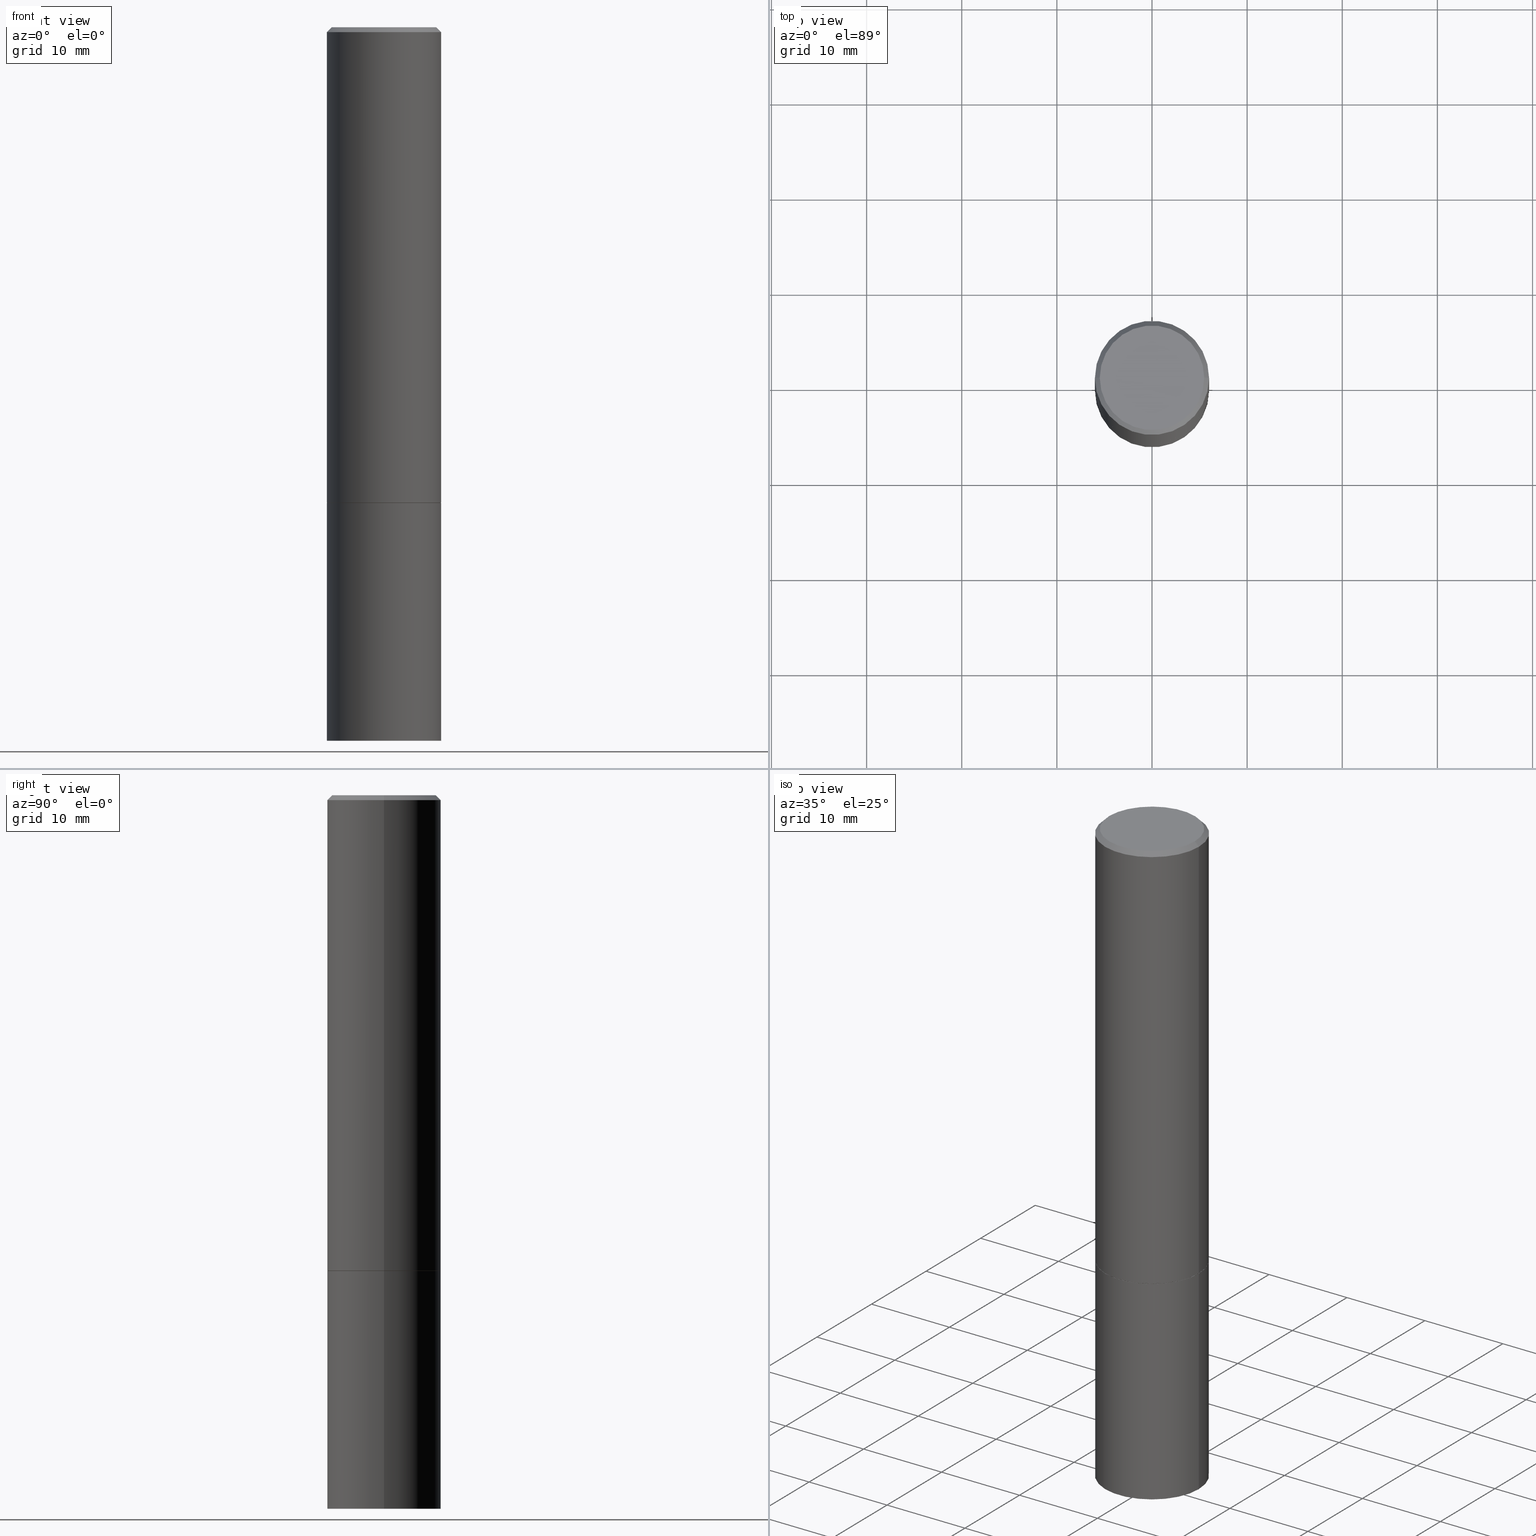
[diagram: canonical four-view strip — front | top / right | iso, engineering-drawing reading convention]
A machine part, canonical four-view strip (front | top / right | iso — engineering-drawing reading convention). The complete STEP part file that produces these views, byte-faithful:
ISO-10303-21;
HEADER;
FILE_DESCRIPTION (( 'STEP AP203' ),
    '1' );
FILE_NAME ('42623.STEP',
    '2024-02-28T03:40:38',
    ( '' ),
    ( '' ),
    'SwSTEP 2.0',
    'SolidWorks 2023',
    '' );
FILE_SCHEMA (( 'CONFIG_CONTROL_DESIGN' ));
ENDSEC;

DATA;
#1 = DIRECTION ( 'NONE',  ( 1.000000000000000000, -6.982962677686264344E-15, 0.000000000000000000 ) ) ;
#2 = PRODUCT_DEFINITION ( 'UNKNOWN', '', #31, #4 ) ;
#3 = ORIENTED_EDGE ( 'NONE', *, *, #92, .F. ) ;
#4 = DESIGN_CONTEXT ( 'detailed design', #308, 'design' ) ;
#5 = ORIENTED_EDGE ( 'NONE', *, *, #351, .T. ) ;
#6 = EDGE_LOOP ( 'NONE', ( #309, #294, #67, #203 ) ) ;
#7 = AXIS2_PLACEMENT_3D ( 'NONE', #360, #312, #159 ) ;
#8 = EDGE_LOOP ( 'NONE', ( #173, #139, #252, #177 ) ) ;
#9 = EDGE_CURVE ( 'NONE', #181, #117, #356, .T. ) ;
#10 = ORIENTED_EDGE ( 'NONE', *, *, #57, .F. ) ;
#11 = CARTESIAN_POINT ( 'NONE',  ( 0.000000000000000000, 0.000000000000000000, 0.000000000000000000 ) ) ;
#12 = ORIENTED_EDGE ( 'NONE', *, *, #223, .F. ) ;
#13 = DIRECTION ( 'NONE',  ( -2.445468806185136877E-29, 3.491481338843145188E-15, 1.000000000000000000 ) ) ;
#14 = AXIS2_PLACEMENT_3D ( 'NONE', #11, #170, #345 ) ;
#15 = PERSON_AND_ORGANIZATION_ROLE ( 'design_owner' ) ;
#16 = CARTESIAN_POINT ( 'NONE',  ( -0.2351999999999999924, -5.196486046656753130E-15, -1.968500000000000139 ) ) ;
#17 = PERSON_AND_ORGANIZATION ( #158, #237 ) ;
#18 = DIRECTION ( 'NONE',  ( -2.445468806185136877E-29, 3.491481338843145188E-15, 1.000000000000000000 ) ) ;
#19 = DIRECTION ( 'NONE',  ( -1.000000000000000000, 6.982962677686265922E-15, -4.876176775795935793E-29 ) ) ;
#20 = CARTESIAN_POINT ( 'NONE',  ( 4.813905344975441835E-29, -6.872981015512731707E-15, -1.968500000000000139 ) ) ;
#21 = AXIS2_PLACEMENT_3D ( 'NONE', #256, #84, #205 ) ;
#22 = EDGE_CURVE ( 'NONE', #117, #50, #228, .T. ) ;
#23 = DIRECTION ( 'NONE',  ( -2.445468806185136597E-29, 3.491481338843145583E-15, 1.000000000000000000 ) ) ;
#24 = LINE ( 'NONE', #358, #304 ) ;
#25 = EDGE_CURVE ( 'NONE', #188, #350, #129, .T. ) ;
#26 = CYLINDRICAL_SURFACE ( 'NONE', #34, 0.2361999999999998545 ) ;
#27 = CARTESIAN_POINT ( 'NONE',  ( 0.000000000000000000, 0.000000000000000000, 0.000000000000000000 ) ) ;
#28 = ORIENTED_EDGE ( 'NONE', *, *, #172, .T. ) ;
#29 = DIRECTION ( 'NONE',  ( -2.445468806185136597E-29, 3.491481338843145583E-15, 1.000000000000000000 ) ) ;
#30 = ADVANCED_FACE ( 'NONE', ( #364 ), #267, .F. ) ;
#31 = PRODUCT_DEFINITION_FORMATION_WITH_SPECIFIED_SOURCE ( 'ANY', '', #342, .NOT_KNOWN. ) ;
#32 = APPROVAL_DATE_TIME ( #287, #265 ) ;
#33 = PERSON_AND_ORGANIZATION_ROLE ( 'classification_officer' ) ;
#34 = AXIS2_PLACEMENT_3D ( 'NONE', #201, #138, #251 ) ;
#35 = ORIENTED_EDGE ( 'NONE', *, *, #286, .F. ) ;
#36 = EDGE_LOOP ( 'NONE', ( #151, #291 ) ) ;
#37 =( NAMED_UNIT ( * ) SI_UNIT ( $, .STERADIAN. ) SOLID_ANGLE_UNIT ( ) );
#38 = ORIENTED_EDGE ( 'NONE', *, *, #240, .F. ) ;
#39 = DIRECTION ( 'NONE',  ( 1.000000000000000000, -6.982962677686265133E-15, 0.000000000000000000 ) ) ;
#40 = DIRECTION ( 'NONE',  ( -2.438088387897960049E-29, 3.491481338843145188E-15, 1.000000000000000000 ) ) ;
#41 = PERSON_AND_ORGANIZATION ( #158, #237 ) ;
#42 = DIRECTION ( 'NONE',  ( 1.000000000000000000, -6.982962677686265133E-15, 0.000000000000000000 ) ) ;
#43 = MANIFOLD_SOLID_BREP ( 'Body-Move/Copy2[1]', #341 ) ;
#44 = DIRECTION ( 'NONE',  ( 0.7071067811864267805, -2.468850131080992517E-15, 0.7071067811866682540 ) ) ;
#45 = CARTESIAN_POINT ( 'NONE',  ( 0.000000000000000000, 0.000000000000000000, 0.000000000000000000 ) ) ;
#46 = DIRECTION ( 'NONE',  ( 1.000000000000000000, -6.982962677686265133E-15, 0.000000000000000000 ) ) ;
#47 = AXIS2_PLACEMENT_3D ( 'NONE', #135, #132, #19 ) ;
#48 = CC_DESIGN_SECURITY_CLASSIFICATION ( #306, ( #31 ) ) ;
#49 = PERSON_AND_ORGANIZATION ( #158, #237 ) ;
#50 = VERTEX_POINT ( 'NONE', #99 ) ;
#51 = DIRECTION ( 'NONE',  ( -2.445468806185136597E-29, 3.491481338843145583E-15, 1.000000000000000000 ) ) ;
#52 = EDGE_LOOP ( 'NONE', ( #266, #58, #348, #144 ) ) ;
#53 = CONICAL_SURFACE ( 'NONE', #292, 0.2361999999999997157, 0.7853981633974473908 ) ;
#54 = CYLINDRICAL_SURFACE ( 'NONE', #98, 0.2361999999999999933 ) ;
#55 = DIRECTION ( 'NONE',  ( 2.445468806185136597E-29, -3.491481338843145583E-15, -1.000000000000000000 ) ) ;
#56 = CARTESIAN_POINT ( 'NONE',  ( -0.2361999999999997157, 1.579546157692631255E-15, -0.02000000000000005593 ) ) ;
#57 = EDGE_CURVE ( 'NONE', #88, #50, #361, .T. ) ;
#58 = ORIENTED_EDGE ( 'NONE', *, *, #147, .T. ) ;
#59 = CIRCLE ( 'NONE', #164, 0.2361999999999997157 ) ;
#60 = AXIS2_PLACEMENT_3D ( 'NONE', #296, #69, #46 ) ;
#61 = CYLINDRICAL_SURFACE ( 'NONE', #14, 0.2361999999999998545 ) ;
#62 = AXIS2_PLACEMENT_3D ( 'NONE', #238, #212, #100 ) ;
#63 = ORIENTED_EDGE ( 'NONE', *, *, #351, .F. ) ;
#64 = CC_DESIGN_PERSON_AND_ORGANIZATION_ASSIGNMENT ( #41, #15, ( #342 ) ) ;
#65 = ORIENTED_EDGE ( 'NONE', *, *, #298, .T. ) ;
#66 = VECTOR ( 'NONE', #339, 39.37007874015748143 ) ;
#67 = ORIENTED_EDGE ( 'NONE', *, *, #126, .T. ) ;
#68 = CARTESIAN_POINT ( 'NONE',  ( 7.220980290903470182E-29, -1.030964609733603853E-14, -2.952799999999999869 ) ) ;
#69 = DIRECTION ( 'NONE',  ( -2.445468806185136597E-29, 3.491481338843145583E-15, 1.000000000000000000 ) ) ;
#70 = APPROVAL_STATUS ( 'not_yet_approved' ) ;
#71 = CARTESIAN_POINT ( 'NONE',  ( 4.813905344975440714E-29, -6.872981015512730918E-15, -1.968499999999999694 ) ) ;
#72 = COORDINATED_UNIVERSAL_TIME_OFFSET ( 5, 0, .BEHIND. ) ;
#73 = DIRECTION ( 'NONE',  ( -2.445468806185136877E-29, 3.491481338843145188E-15, 1.000000000000000000 ) ) ;
#74 = FACE_OUTER_BOUND ( 'NONE', #6, .T. ) ;
#75 = DIRECTION ( 'NONE',  ( -2.445468806185136597E-29, 3.491481338843145583E-15, 1.000000000000000000 ) ) ;
#76 = LINE ( 'NONE', #199, #134 ) ;
#77 = CARTESIAN_POINT ( 'NONE',  ( 0.2361999999999999933, -8.518865318643383648E-15, -1.967499999999999805 ) ) ;
#78 = CLOSED_SHELL ( 'NONE', ( #118, #329, #131, #219, #262, #178, #30, #234 ) ) ;
#79 = APPROVAL_PERSON_ORGANIZATION ( #230, #265, #231 ) ;
#80 = MECHANICAL_CONTEXT ( 'NONE', #216, 'mechanical' ) ;
#81 = LINE ( 'NONE', #163, #253 ) ;
#82 = FACE_OUTER_BOUND ( 'NONE', #122, .T. ) ;
#83 = CARTESIAN_POINT ( 'NONE',  ( 0.2361999999999997157, -1.690279253850496996E-15, -0.02000000000000005593 ) ) ;
#84 = DIRECTION ( 'NONE',  ( -2.445468806185136597E-29, 3.491481338843145583E-15, 1.000000000000000000 ) ) ;
#85 = AXIS2_PLACEMENT_3D ( 'NONE', #332, #75, #270 ) ;
#86 =( GEOMETRIC_REPRESENTATION_CONTEXT ( 3 ) GLOBAL_UNCERTAINTY_ASSIGNED_CONTEXT ( ( #200 ) ) GLOBAL_UNIT_ASSIGNED_CONTEXT ( ( #93, #321, #37 ) ) REPRESENTATION_CONTEXT ( 'NONE', 'WORKASPACE' ) );
#87 = ADVANCED_FACE ( 'NONE', ( #239 ), #222, .F. ) ;
#88 = VERTEX_POINT ( 'NONE', #156 ) ;
#89 = CALENDAR_DATE ( 2024, 27, 2 ) ;
#90 = ORIENTED_EDGE ( 'NONE', *, *, #286, .T. ) ;
#91 = VECTOR ( 'NONE', #13, 39.37007874015748143 ) ;
#92 = EDGE_CURVE ( 'NONE', #214, #185, #24, .T. ) ;
#93 =( CONVERSION_BASED_UNIT ( 'INCH', #148 ) LENGTH_UNIT ( ) NAMED_UNIT ( #110 ) );
#94 = ORIENTED_EDGE ( 'NONE', *, *, #223, .T. ) ;
#95 = VERTEX_POINT ( 'NONE', #16 ) ;
#96 = EDGE_LOOP ( 'NONE', ( #90, #263 ) ) ;
#97 =( LENGTH_UNIT ( ) NAMED_UNIT ( * ) SI_UNIT ( $, .METRE. ) );
#98 = AXIS2_PLACEMENT_3D ( 'NONE', #27, #133, #349 ) ;
#99 = CARTESIAN_POINT ( 'NONE',  ( 0.2361999999999999933, -8.522356799982226655E-15, -1.968499999999999694 ) ) ;
#100 = DIRECTION ( 'NONE',  ( 1.000000000000000000, -6.982962677686269077E-15, 0.000000000000000000 ) ) ;
#101 = CARTESIAN_POINT ( 'NONE',  ( 4.890937612370287172E-31, -6.982962677686310098E-17, -0.02000000000000005593 ) ) ;
#102 = APPLICATION_PROTOCOL_DEFINITION ( 'international standard', 'config_control_design', 1994, #216 ) ;
#103 = DIRECTION ( 'NONE',  ( 1.000000000000000000, -6.982962677686264344E-15, 0.000000000000000000 ) ) ;
#104 = LINE ( 'NONE', #56, #128 ) ;
#105 = CIRCLE ( 'NONE', #7, 0.2351999999999999924 ) ;
#106 = DIRECTION ( 'NONE',  ( 1.000000000000000000, -6.982962677686265922E-15, 4.876176775795935793E-29 ) ) ;
#107 = CC_DESIGN_DATE_AND_TIME_ASSIGNMENT ( #255, #116, ( #306 ) ) ;
#108 = DIRECTION ( 'NONE',  ( 1.000000000000000000, -6.982962677686266711E-15, 4.875778670202492554E-29 ) ) ;
#109 = CARTESIAN_POINT ( 'NONE',  ( -0.2361999999999999933, -6.913011614559027935E-15, -1.968499999999999694 ) ) ;
#110 = DIMENSIONAL_EXPONENTS ( 1.000000000000000000, 0.000000000000000000, 0.000000000000000000, 0.000000000000000000, 0.000000000000000000, 0.000000000000000000, 0.000000000000000000 ) ;
#111 = PERSON_AND_ORGANIZATION ( #158, #237 ) ;
#112 = CIRCLE ( 'NONE', #123, 0.2361999999999999933 ) ;
#113 = ORIENTED_EDGE ( 'NONE', *, *, #25, .F. ) ;
#114 = VECTOR ( 'NONE', #73, 39.37007874015748143 ) ;
#115 = ADVANCED_FACE ( 'NONE', ( #246 ), #220, .T. ) ;
#116 = DATE_TIME_ROLE ( 'classification_date' ) ;
#117 = VERTEX_POINT ( 'NONE', #109 ) ;
#118 = ADVANCED_FACE ( 'NONE', ( #162 ), #283, .T. ) ;
#119 = COORDINATED_UNIVERSAL_TIME_OFFSET ( 5, 0, .BEHIND. ) ;
#120 = CC_DESIGN_PERSON_AND_ORGANIZATION_ASSIGNMENT ( #49, #278, ( #2 ) ) ;
#121 = DIRECTION ( 'NONE',  ( -0.7071067811865469066, 2.468850131082249961E-15, -0.7071067811865482389 ) ) ;
#122 = EDGE_LOOP ( 'NONE', ( #113, #35, #235, #179 ) ) ;
#123 = AXIS2_PLACEMENT_3D ( 'NONE', #68, #187, #39 ) ;
#124 = AXIS2_PLACEMENT_3D ( 'NONE', #281, #29, #194 ) ;
#125 = EDGE_LOOP ( 'NONE', ( #290, #65, #224, #38 ) ) ;
#126 = EDGE_CURVE ( 'NONE', #350, #301, #59, .T. ) ;
#127 = VERTEX_POINT ( 'NONE', #337 ) ;
#128 = VECTOR ( 'NONE', #121, 39.37007874015748143 ) ;
#129 = LINE ( 'NONE', #275, #66 ) ;
#130 = CARTESIAN_POINT ( 'NONE',  ( 1.649375784469568312E-15, 0.2361999999999896960, -2.952800000000000757 ) ) ;
#131 = ADVANCED_FACE ( 'NONE', ( #74 ), #289, .T. ) ;
#132 = DIRECTION ( 'NONE',  ( 2.438088387897960049E-29, -3.491481338843145188E-15, -1.000000000000000000 ) ) ;
#133 = DIRECTION ( 'NONE',  ( -2.445468806185136597E-29, 3.491481338843145583E-15, 1.000000000000000000 ) ) ;
#134 = VECTOR ( 'NONE', #331, 39.37007874015748143 ) ;
#135 = CARTESIAN_POINT ( 'NONE',  ( 1.649375784469544054E-15, 0.2361999999999931377, -1.968500000000000583 ) ) ;
#136 = DIRECTION ( 'NONE',  ( 1.000000000000000000, -6.982962677686269077E-15, 0.000000000000000000 ) ) ;
#137 = DIRECTION ( 'NONE',  ( 1.000000000000000000, -6.982962677686266711E-15, 0.000000000000000000 ) ) ;
#138 = DIRECTION ( 'NONE',  ( -2.445468806185136597E-29, 3.491481338843145583E-15, 1.000000000000000000 ) ) ;
#139 = ORIENTED_EDGE ( 'NONE', *, *, #354, .T. ) ;
#140 = CARTESIAN_POINT ( 'NONE',  ( 0.2161999999999996980, -1.586759460484350016E-15, 8.537024980211650906E-18 ) ) ;
#141 = SHAPE_DEFINITION_REPRESENTATION ( #168, #207 ) ;
#142 = CC_DESIGN_PERSON_AND_ORGANIZATION_ASSIGNMENT ( #174, #33, ( #306 ) ) ;
#143 = APPROVAL_STATUS ( 'not_yet_approved' ) ;
#144 = ORIENTED_EDGE ( 'NONE', *, *, #22, .F. ) ;
#145 = VECTOR ( 'NONE', #160, 39.37007874015748143 ) ;
#146 = CIRCLE ( 'NONE', #244, 0.2361999999999999933 ) ;
#147 = EDGE_CURVE ( 'NONE', #181, #88, #112, .T. ) ;
#148 = LENGTH_MEASURE_WITH_UNIT ( LENGTH_MEASURE( 0.02539999999999999897 ), #97 );
#149 = EDGE_LOOP ( 'NONE', ( #63, #176 ) ) ;
#150 = AXIS2_PLACEMENT_3D ( 'NONE', #101, #218, #326 ) ;
#151 = ORIENTED_EDGE ( 'NONE', *, *, #282, .F. ) ;
#152 = ORIENTED_EDGE ( 'NONE', *, *, #22, .T. ) ;
#153 = AXIS2_PLACEMENT_3D ( 'NONE', #71, #299, #42 ) ;
#154 = CC_DESIGN_APPROVAL ( #265, ( #306 ) ) ;
#155 = ADVANCED_FACE ( 'NONE', ( #192 ), #328, .T. ) ;
#156 = CARTESIAN_POINT ( 'NONE',  ( 0.2361999999999999933, -1.195902188180553348E-14, -2.952799999999999869 ) ) ;
#157 = DATE_AND_TIME ( #250, #313 ) ;
#158 = PERSON ( 'UNSPECIFIED', 'UNSPECIFIED', 'UNSPECIFIED', ('UNSPECIFIED'), ('UNSPECIFIED'), ('UNSPECIFIED') ) ;
#159 = DIRECTION ( 'NONE',  ( 1.000000000000000000, -6.982962677686264344E-15, 0.000000000000000000 ) ) ;
#160 = DIRECTION ( 'NONE',  ( -2.445468806185136877E-29, 3.491481338843145188E-15, 1.000000000000000000 ) ) ;
#161 = PERSON_AND_ORGANIZATION_ROLE ( 'creator' ) ;
#162 = FACE_OUTER_BOUND ( 'NONE', #323, .T. ) ;
#163 = CARTESIAN_POINT ( 'NONE',  ( 0.2361999999999998545, -1.649375784469495145E-15, 1.151752954442999387E-29 ) ) ;
#164 = AXIS2_PLACEMENT_3D ( 'NONE', #197, #303, #137 ) ;
#165 = CARTESIAN_POINT ( 'NONE',  ( 4.813905344975441835E-29, -6.872981015512731707E-15, -1.968500000000000139 ) ) ;
#166 = CALENDAR_DATE ( 2024, 27, 2 ) ;
#167 = DIRECTION ( 'NONE',  ( -1.000000000000000000, 6.982962677686265922E-15, -4.876176775795935793E-29 ) ) ;
#168 = PRODUCT_DEFINITION_SHAPE ( 'NONE', 'NONE',  #2 ) ;
#169 = CARTESIAN_POINT ( 'NONE',  ( -0.2361999999999998545, 1.678301941865355605E-15, -1.161852468318208056E-29 ) ) ;
#170 = DIRECTION ( 'NONE',  ( -2.445468806185136597E-29, 3.491481338843145583E-15, 1.000000000000000000 ) ) ;
#171 = CIRCLE ( 'NONE', #21, 0.2351999999999999924 ) ;
#172 = EDGE_CURVE ( 'NONE', #50, #117, #317, .T. ) ;
#173 = ORIENTED_EDGE ( 'NONE', *, *, #298, .F. ) ;
#174 = PERSON_AND_ORGANIZATION ( #158, #237 ) ;
#175 = MANIFOLD_SOLID_BREP ( 'Body-Move/Copy2[2]', #78 ) ;
#176 = ORIENTED_EDGE ( 'NONE', *, *, #147, .F. ) ;
#177 = ORIENTED_EDGE ( 'NONE', *, *, #310, .F. ) ;
#178 = ADVANCED_FACE ( 'NONE', ( #272 ), #346, .T. ) ;
#179 = ORIENTED_EDGE ( 'NONE', *, *, #310, .T. ) ;
#180 = DIRECTION ( 'NONE',  ( -2.445468806185136597E-29, 3.491481338843145583E-15, 1.000000000000000000 ) ) ;
#181 = VERTEX_POINT ( 'NONE', #285 ) ;
#182 = DIRECTION ( 'NONE',  ( 1.000000000000000000, -6.982962677686265133E-15, 0.000000000000000000 ) ) ;
#183 = ORIENTED_EDGE ( 'NONE', *, *, #288, .F. ) ;
#184 = AXIS2_PLACEMENT_3D ( 'NONE', #279, #254, #108 ) ;
#185 = VERTEX_POINT ( 'NONE', #77 ) ;
#186 = CC_DESIGN_PERSON_AND_ORGANIZATION_ASSIGNMENT ( #273, #316, ( #31 ) ) ;
#187 = DIRECTION ( 'NONE',  ( -2.445468806185136597E-29, 3.491481338843145583E-15, 1.000000000000000000 ) ) ;
#188 = VERTEX_POINT ( 'NONE', #140 ) ;
#189 = CIRCLE ( 'NONE', #236, 0.2161999999999996980 ) ;
#190 = CALENDAR_DATE ( 2024, 27, 2 ) ;
#191 = APPROVAL_PERSON_ORGANIZATION ( #311, #213, #330 ) ;
#192 = FACE_OUTER_BOUND ( 'NONE', #149, .T. ) ;
#193 = DATE_AND_TIME ( #190, #229 ) ;
#194 = DIRECTION ( 'NONE',  ( 1.000000000000000000, -6.982962677686266711E-15, 0.000000000000000000 ) ) ;
#195 = CARTESIAN_POINT ( 'NONE',  ( -0.2361999999999999933, 1.678301941865356591E-15, -1.161852468318208757E-29 ) ) ;
#196 = APPROVAL_STATUS ( 'not_yet_approved' ) ;
#197 = CARTESIAN_POINT ( 'NONE',  ( 4.890937612370287172E-31, -6.982962677686310098E-17, -0.02000000000000005593 ) ) ;
#198 = EDGE_CURVE ( 'NONE', #95, #214, #171, .T. ) ;
#199 = CARTESIAN_POINT ( 'NONE',  ( -0.2351999999999999924, -5.201784501004976321E-15, -1.968500000000000139 ) ) ;
#200 = UNCERTAINTY_MEASURE_WITH_UNIT (LENGTH_MEASURE( 1.000000000000000082E-05 ), #93, 'distance_accuracy_value', 'NONE');
#201 = CARTESIAN_POINT ( 'NONE',  ( 0.000000000000000000, 0.000000000000000000, 0.000000000000000000 ) ) ;
#202 = ADVANCED_FACE ( 'NONE', ( #280 ), #54, .T. ) ;
#203 = ORIENTED_EDGE ( 'NONE', *, *, #324, .F. ) ;
#204 = CALENDAR_DATE ( 2024, 27, 2 ) ;
#205 = DIRECTION ( 'NONE',  ( 1.000000000000000000, -6.982962677686264344E-15, 0.000000000000000000 ) ) ;
#206 = AXIS2_PLACEMENT_3D ( 'NONE', #338, #51, #136 ) ;
#207 = ADVANCED_BREP_SHAPE_REPRESENTATION ( '42623', ( #43, #175, #347 ), #86 ) ;
#208 = COORDINATED_UNIVERSAL_TIME_OFFSET ( 5, 0, .BEHIND. ) ;
#209 = ORIENTED_EDGE ( 'NONE', *, *, #92, .T. ) ;
#210 = CIRCLE ( 'NONE', #62, 0.2361999999999999933 ) ;
#211 = EDGE_LOOP ( 'NONE', ( #28, #152 ) ) ;
#212 = DIRECTION ( 'NONE',  ( -2.445468806185136597E-29, 3.491481338843145583E-15, 1.000000000000000000 ) ) ;
#213 = APPROVAL ( #196, 'UNSPECIFIED' ) ;
#214 = VERTEX_POINT ( 'NONE', #226 ) ;
#215 = AXIS2_PLACEMENT_3D ( 'NONE', #165, #295, #103 ) ;
#216 = APPLICATION_CONTEXT ( 'configuration controlled 3d designs of mechanical parts and assemblies' ) ;
#217 = CARTESIAN_POINT ( 'NONE',  ( 0.2361999999999999933, -1.649375784469496131E-15, 1.151752954443000088E-29 ) ) ;
#218 = DIRECTION ( 'NONE',  ( 2.445468806185136597E-29, -3.491481338843145583E-15, -1.000000000000000000 ) ) ;
#219 = ADVANCED_FACE ( 'NONE', ( #82 ), #53, .T. ) ;
#220 = CYLINDRICAL_SURFACE ( 'NONE', #85, 0.2361999999999999933 ) ;
#221 = DIRECTION ( 'NONE',  ( 1.000000000000000000, -6.982962677686266711E-15, 4.875778670202492554E-29 ) ) ;
#222 = PLANE ( 'NONE',  #47 ) ;
#223 = EDGE_CURVE ( 'NONE', #95, #127, #76, .T. ) ;
#224 = ORIENTED_EDGE ( 'NONE', *, *, #126, .F. ) ;
#225 = DATE_AND_TIME ( #166, #325 ) ;
#226 = CARTESIAN_POINT ( 'NONE',  ( 0.2351999999999999924, -8.515373837304542218E-15, -1.968500000000000139 ) ) ;
#227 = APPROVAL_ROLE ( '' ) ;
#228 = CIRCLE ( 'NONE', #60, 0.2361999999999999933 ) ;
#229 = LOCAL_TIME ( 22, 40, 38.00000000000000000, #72 ) ;
#230 = PERSON_AND_ORGANIZATION ( #158, #237 ) ;
#231 = APPROVAL_ROLE ( '' ) ;
#232 = ORIENTED_EDGE ( 'NONE', *, *, #9, .T. ) ;
#233 = LOCAL_TIME ( 22, 40, 38.00000000000000000, #119 ) ;
#234 = ADVANCED_FACE ( 'NONE', ( #245 ), #363, .F. ) ;
#235 = ORIENTED_EDGE ( 'NONE', *, *, #324, .T. ) ;
#236 = AXIS2_PLACEMENT_3D ( 'NONE', #276, #23, #221 ) ;
#237 = ORGANIZATION ( 'UNSPECIFIED', 'UNSPECIFIED', '' ) ;
#238 = CARTESIAN_POINT ( 'NONE',  ( 4.811459876169255671E-29, -6.869489534173887122E-15, -1.967499999999999805 ) ) ;
#239 = FACE_OUTER_BOUND ( 'NONE', #211, .T. ) ;
#240 = EDGE_CURVE ( 'NONE', #185, #350, #81, .T. ) ;
#241 = DIRECTION ( 'NONE',  ( 2.438088387897960049E-29, -3.491481338843145188E-15, -1.000000000000000000 ) ) ;
#242 = CARTESIAN_POINT ( 'NONE',  ( -0.2361999999999997157, 1.579546157692631255E-15, -0.02000000000000005593 ) ) ;
#243 = CARTESIAN_POINT ( 'NONE',  ( 4.813905344975441835E-29, -6.872981015512731707E-15, -1.968500000000000139 ) ) ;
#244 = AXIS2_PLACEMENT_3D ( 'NONE', #355, #180, #182 ) ;
#245 = FACE_OUTER_BOUND ( 'NONE', #96, .T. ) ;
#246 = FACE_OUTER_BOUND ( 'NONE', #315, .T. ) ;
#247 = APPLICATION_PROTOCOL_DEFINITION ( 'international standard', 'config_control_design', 1994, #308 ) ;
#248 = CC_DESIGN_PERSON_AND_ORGANIZATION_ASSIGNMENT ( #17, #161, ( #31 ) ) ;
#249 = LINE ( 'NONE', #169, #114 ) ;
#250 = CALENDAR_DATE ( 2024, 27, 2 ) ;
#251 = DIRECTION ( 'NONE',  ( 1.000000000000000000, -6.982962677686266711E-15, 4.876176775795935793E-29 ) ) ;
#252 = ORIENTED_EDGE ( 'NONE', *, *, #240, .T. ) ;
#253 = VECTOR ( 'NONE', #18, 39.37007874015748143 ) ;
#254 = DIRECTION ( 'NONE',  ( -2.445468806185136597E-29, 3.491481338843145583E-15, 1.000000000000000000 ) ) ;
#255 = DATE_AND_TIME ( #89, #233 ) ;
#256 = CARTESIAN_POINT ( 'NONE',  ( 4.813905344975441835E-29, -6.872981015512731707E-15, -1.968500000000000139 ) ) ;
#257 = VERTEX_POINT ( 'NONE', #302 ) ;
#258 = EDGE_CURVE ( 'NONE', #188, #257, #333, .T. ) ;
#259 = SECURITY_CLASSIFICATION_LEVEL ( 'unclassified' ) ;
#260 = PRODUCT_RELATED_PRODUCT_CATEGORY ( 'detail', '', ( #342 ) ) ;
#261 = FACE_OUTER_BOUND ( 'NONE', #125, .T. ) ;
#262 = ADVANCED_FACE ( 'NONE', ( #274 ), #26, .T. ) ;
#263 = ORIENTED_EDGE ( 'NONE', *, *, #258, .T. ) ;
#264 = AXIS2_PLACEMENT_3D ( 'NONE', #307, #336, #167 ) ;
#265 = APPROVAL ( #143, 'UNSPECIFIED' ) ;
#266 = ORIENTED_EDGE ( 'NONE', *, *, #9, .F. ) ;
#267 = PLANE ( 'NONE',  #268 ) ;
#268 = AXIS2_PLACEMENT_3D ( 'NONE', #20, #40, #106 ) ;
#269 = CIRCLE ( 'NONE', #124, 0.2361999999999997157 ) ;
#270 = DIRECTION ( 'NONE',  ( 1.000000000000000000, -6.982962677686266711E-15, 4.876176775795936353E-29 ) ) ;
#271 = APPROVAL_DATE_TIME ( #193, #314 ) ;
#272 = FACE_OUTER_BOUND ( 'NONE', #344, .T. ) ;
#273 = PERSON_AND_ORGANIZATION ( #158, #237 ) ;
#274 = FACE_OUTER_BOUND ( 'NONE', #8, .T. ) ;
#275 = CARTESIAN_POINT ( 'NONE',  ( 0.2361999999999997157, -1.690279253850496996E-15, -0.02000000000000005593 ) ) ;
#276 = CARTESIAN_POINT ( 'NONE',  ( -2.087702828670439639E-46, 2.980686340760894400E-32, 8.537024980200822558E-18 ) ) ;
#277 = ORIENTED_EDGE ( 'NONE', *, *, #354, .F. ) ;
#278 = PERSON_AND_ORGANIZATION_ROLE ( 'creator' ) ;
#279 = CARTESIAN_POINT ( 'NONE',  ( -2.087702828670439639E-46, 2.980686340760894400E-32, 8.537024980200822558E-18 ) ) ;
#280 = FACE_OUTER_BOUND ( 'NONE', #52, .T. ) ;
#281 = CARTESIAN_POINT ( 'NONE',  ( 4.890937612370287172E-31, -6.982962677686310098E-17, -0.02000000000000005593 ) ) ;
#282 = EDGE_CURVE ( 'NONE', #214, #95, #105, .T. ) ;
#283 = CONICAL_SURFACE ( 'NONE', #215, 0.2351999999999999924, 0.7853981633972775267 ) ;
#284 = CC_DESIGN_APPROVAL ( #213, ( #2 ) ) ;
#285 = CARTESIAN_POINT ( 'NONE',  ( -0.2361999999999999933, -6.913011614559027935E-15, -2.952799999999999869 ) ) ;
#286 = EDGE_CURVE ( 'NONE', #257, #188, #189, .T. ) ;
#287 = DATE_AND_TIME ( #204, #318 ) ;
#288 = EDGE_CURVE ( 'NONE', #185, #127, #362, .T. ) ;
#289 = CONICAL_SURFACE ( 'NONE', #150, 0.2361999999999997157, 0.7853981633974473908 ) ;
#290 = ORIENTED_EDGE ( 'NONE', *, *, #288, .T. ) ;
#291 = ORIENTED_EDGE ( 'NONE', *, *, #198, .F. ) ;
#292 = AXIS2_PLACEMENT_3D ( 'NONE', #357, #55, #293 ) ;
#293 = DIRECTION ( 'NONE',  ( -1.000000000000000000, 6.982962677686266711E-15, 0.000000000000000000 ) ) ;
#294 = ORIENTED_EDGE ( 'NONE', *, *, #25, .T. ) ;
#295 = DIRECTION ( 'NONE',  ( -2.445468806185136597E-29, 3.491481338843145583E-15, 1.000000000000000000 ) ) ;
#296 = CARTESIAN_POINT ( 'NONE',  ( 4.813905344975440714E-29, -6.872981015512730918E-15, -1.968499999999999694 ) ) ;
#297 = AXIS2_PLACEMENT_3D ( 'NONE', #243, #343, #1 ) ;
#298 = EDGE_CURVE ( 'NONE', #127, #301, #249, .T. ) ;
#299 = DIRECTION ( 'NONE',  ( -2.445468806185136597E-29, 3.491481338843145583E-15, 1.000000000000000000 ) ) ;
#300 = COORDINATED_UNIVERSAL_TIME_OFFSET ( 5, 0, .BEHIND. ) ;
#301 = VERTEX_POINT ( 'NONE', #242 ) ;
#302 = CARTESIAN_POINT ( 'NONE',  ( -0.2161999999999996980, 1.544631344304200000E-15, 8.537024980190142121E-18 ) ) ;
#303 = DIRECTION ( 'NONE',  ( -2.445468806185136597E-29, 3.491481338843145583E-15, 1.000000000000000000 ) ) ;
#304 = VECTOR ( 'NONE', #44, 39.37007874015748143 ) ;
#305 = APPROVAL_DATE_TIME ( #225, #213 ) ;
#306 = SECURITY_CLASSIFICATION ( '', '', #259 ) ;
#307 = CARTESIAN_POINT ( 'NONE',  ( 1.509716530915768548E-15, 0.2161999999999996980, -7.505897529677867071E-16 ) ) ;
#308 = APPLICATION_CONTEXT ( 'configuration controlled 3d designs of mechanical parts and assemblies' ) ;
#309 = ORIENTED_EDGE ( 'NONE', *, *, #258, .F. ) ;
#310 = EDGE_CURVE ( 'NONE', #301, #350, #269, .T. ) ;
#311 = PERSON_AND_ORGANIZATION ( #158, #237 ) ;
#312 = DIRECTION ( 'NONE',  ( -2.445468806185136597E-29, 3.491481338843145583E-15, 1.000000000000000000 ) ) ;
#313 = LOCAL_TIME ( 22, 40, 38.00000000000000000, #300 ) ;
#314 = APPROVAL ( #70, 'UNSPECIFIED' ) ;
#315 = EDGE_LOOP ( 'NONE', ( #5, #232, #353, #10 ) ) ;
#316 = PERSON_AND_ORGANIZATION_ROLE ( 'design_supplier' ) ;
#317 = CIRCLE ( 'NONE', #153, 0.2361999999999999933 ) ;
#318 = LOCAL_TIME ( 22, 40, 38.00000000000000000, #208 ) ;
#319 = ORIENTED_EDGE ( 'NONE', *, *, #282, .T. ) ;
#320 = APPROVAL_PERSON_ORGANIZATION ( #111, #314, #227 ) ;
#321 =( NAMED_UNIT ( * ) PLANE_ANGLE_UNIT ( ) SI_UNIT ( $, .RADIAN. ) );
#322 = ORIENTED_EDGE ( 'NONE', *, *, #198, .T. ) ;
#323 = EDGE_LOOP ( 'NONE', ( #319, #94, #183, #3 ) ) ;
#324 = EDGE_CURVE ( 'NONE', #257, #301, #104, .T. ) ;
#325 = LOCAL_TIME ( 22, 40, 38.00000000000000000, #365 ) ;
#326 = DIRECTION ( 'NONE',  ( -1.000000000000000000, 6.982962677686266711E-15, 0.000000000000000000 ) ) ;
#327 = CC_DESIGN_DATE_AND_TIME_ASSIGNMENT ( #157, #366, ( #2 ) ) ;
#328 = PLANE ( 'NONE',  #352 ) ;
#329 = ADVANCED_FACE ( 'NONE', ( #261 ), #61, .T. ) ;
#330 = APPROVAL_ROLE ( '' ) ;
#331 = DIRECTION ( 'NONE',  ( -0.7071067811864267805, 7.493145998869918709E-15, 0.7071067811866682540 ) ) ;
#332 = CARTESIAN_POINT ( 'NONE',  ( 0.000000000000000000, 0.000000000000000000, 0.000000000000000000 ) ) ;
#333 = CIRCLE ( 'NONE', #184, 0.2161999999999996980 ) ;
#334 = CC_DESIGN_APPROVAL ( #314, ( #31 ) ) ;
#335 = DIRECTION ( 'NONE',  ( 0.000000000000000000, 0.000000000000000000, 1.000000000000000000 ) ) ;
#336 = DIRECTION ( 'NONE',  ( 2.438088387897960049E-29, -3.491481338843145188E-15, -1.000000000000000000 ) ) ;
#337 = CARTESIAN_POINT ( 'NONE',  ( -0.2362000000000000210, -1.791357638610016844E-15, -1.967499999999999805 ) ) ;
#338 = CARTESIAN_POINT ( 'NONE',  ( 4.811459876169255671E-29, -6.869489534173887122E-15, -1.967499999999999805 ) ) ;
#339 = DIRECTION ( 'NONE',  ( 0.7071067811865469066, -7.319954787623254468E-15, -0.7071067811865482389 ) ) ;
#340 = DIRECTION ( 'NONE',  ( 1.000000000000000000, 0.000000000000000000, 0.000000000000000000 ) ) ;
#341 = CLOSED_SHELL ( 'NONE', ( #115, #155, #87, #202 ) ) ;
#342 = PRODUCT ( '42623', '42623', '', ( #80 ) ) ;
#343 = DIRECTION ( 'NONE',  ( -2.445468806185136597E-29, 3.491481338843145583E-15, 1.000000000000000000 ) ) ;
#344 = EDGE_LOOP ( 'NONE', ( #12, #322, #209, #277 ) ) ;
#345 = DIRECTION ( 'NONE',  ( 1.000000000000000000, -6.982962677686266711E-15, 4.876176775795935793E-29 ) ) ;
#346 = CONICAL_SURFACE ( 'NONE', #297, 0.2351999999999999924, 0.7853981633972775267 ) ;
#347 = AXIS2_PLACEMENT_3D ( 'NONE', #45, #335, #340 ) ;
#348 = ORIENTED_EDGE ( 'NONE', *, *, #57, .T. ) ;
#349 = DIRECTION ( 'NONE',  ( 1.000000000000000000, -6.982962677686266711E-15, 4.876176775795936353E-29 ) ) ;
#350 = VERTEX_POINT ( 'NONE', #83 ) ;
#351 = EDGE_CURVE ( 'NONE', #88, #181, #146, .T. ) ;
#352 = AXIS2_PLACEMENT_3D ( 'NONE', #130, #241, #359 ) ;
#353 = ORIENTED_EDGE ( 'NONE', *, *, #172, .F. ) ;
#354 = EDGE_CURVE ( 'NONE', #127, #185, #210, .T. ) ;
#355 = CARTESIAN_POINT ( 'NONE',  ( 7.220980290903470182E-29, -1.030964609733603853E-14, -2.952799999999999869 ) ) ;
#356 = LINE ( 'NONE', #195, #145 ) ;
#357 = CARTESIAN_POINT ( 'NONE',  ( 4.890937612370287172E-31, -6.982962677686310098E-17, -0.02000000000000005593 ) ) ;
#358 = CARTESIAN_POINT ( 'NONE',  ( 0.2351999999999999924, -8.515373837304542218E-15, -1.968500000000000139 ) ) ;
#359 = DIRECTION ( 'NONE',  ( -1.000000000000000000, 6.982962677686265922E-15, -4.876176775795935793E-29 ) ) ;
#360 = CARTESIAN_POINT ( 'NONE',  ( 4.813905344975441835E-29, -6.872981015512731707E-15, -1.968500000000000139 ) ) ;
#361 = LINE ( 'NONE', #217, #91 ) ;
#362 = CIRCLE ( 'NONE', #206, 0.2361999999999999933 ) ;
#363 = PLANE ( 'NONE',  #264 ) ;
#364 = FACE_OUTER_BOUND ( 'NONE', #36, .T. ) ;
#365 = COORDINATED_UNIVERSAL_TIME_OFFSET ( 5, 0, .BEHIND. ) ;
#366 = DATE_TIME_ROLE ( 'creation_date' ) ;
ENDSEC;
END-ISO-10303-21;
